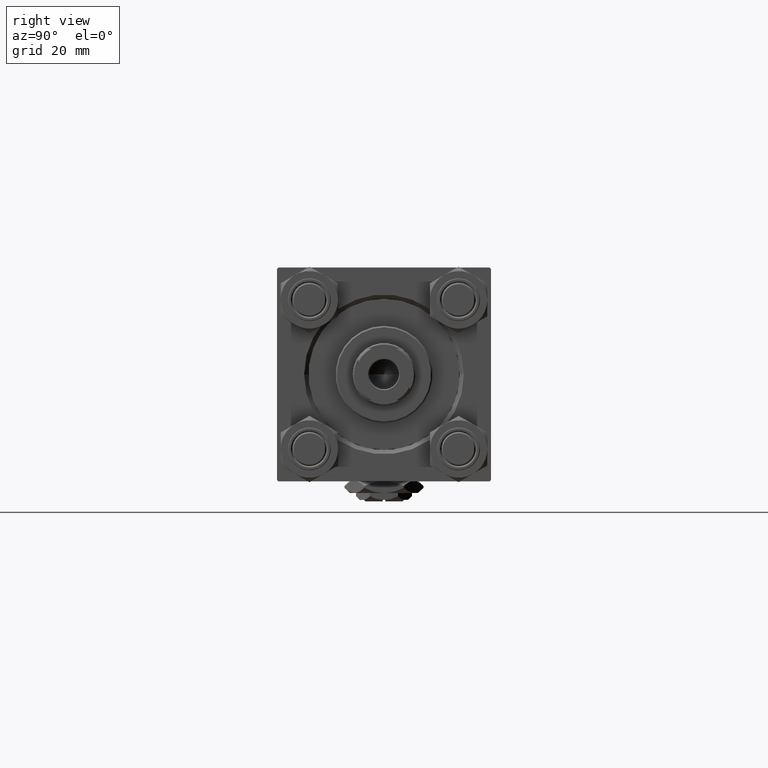
[diagram: clean part render]
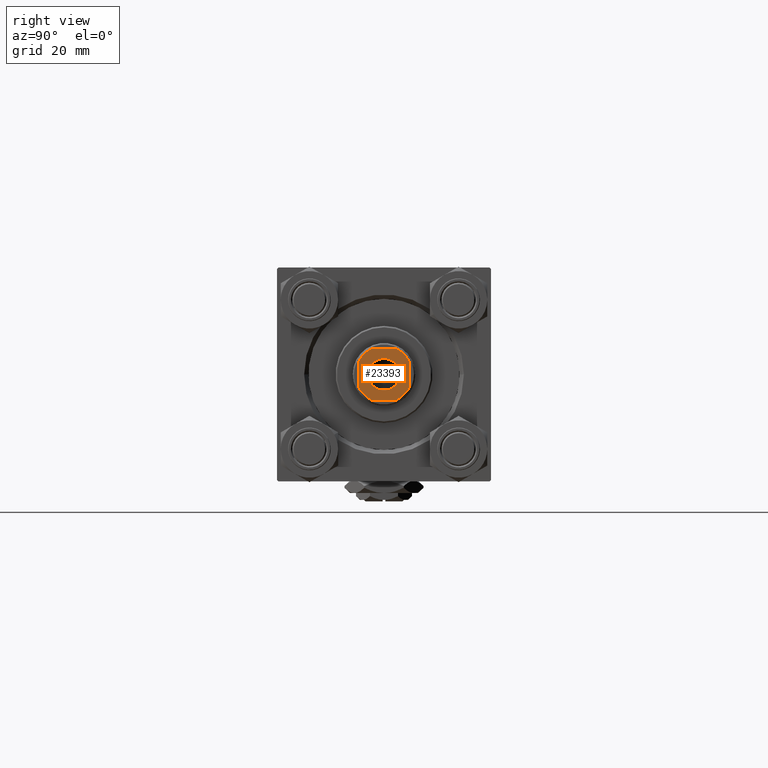
[diagram: same view with one face highlighted and labeled with its STEP entity id]
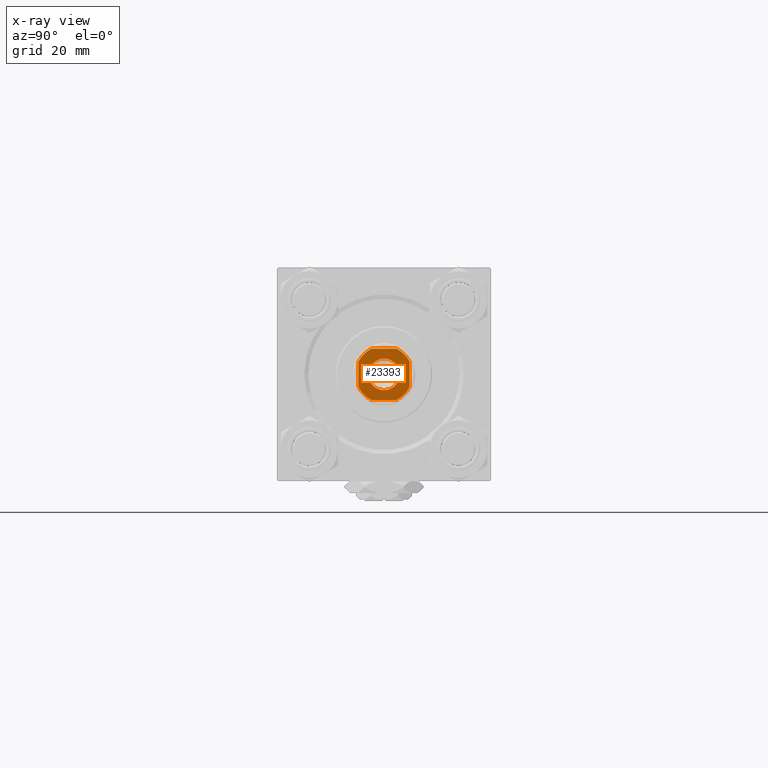
[diagram: x-ray of the same camera — body ghosted, the highlighted face saturated]
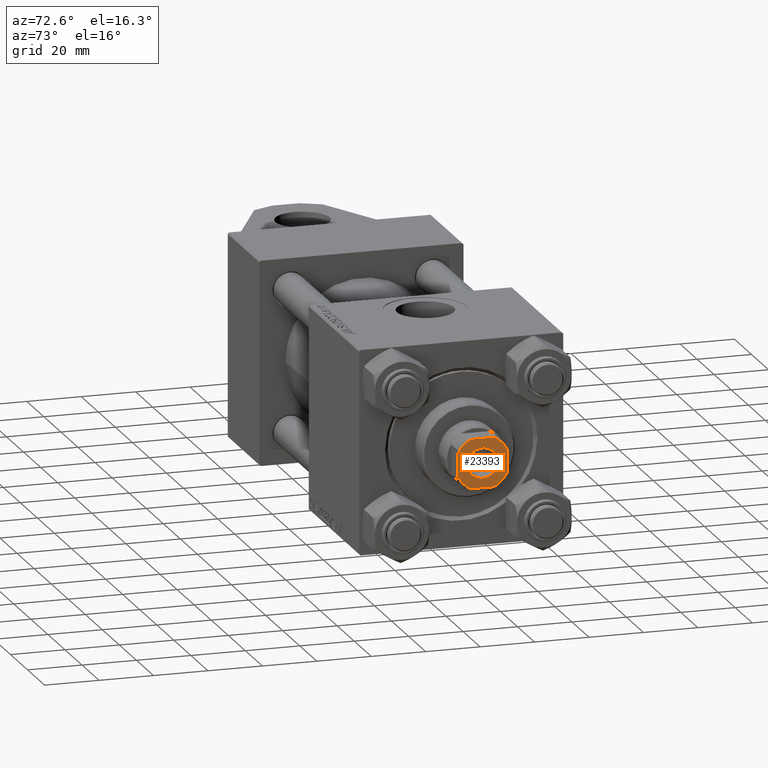
[diagram: same view with one face highlighted and labeled with its STEP entity id]
A machine part, right view. The second image highlights one B-rep face of the part: STEP entity #23393.
The next image is the same camera in x-ray: the body ghosted, the highlighted face saturated — about 0% of this face is hidden behind the body in this view.
A second angle (auxiliary view) of the same face is appended — the face is thin or edge-on in the first view.
In plain terms, the highlighted planar face has unit normal (1, 0, 0).
Its self-contained STEP definition (entity closure, byte-faithful):
#1154 = AXIS2_PLACEMENT_3D ( 'NONE', #40652, #5055, #20908 ) ;
#1589 = DIRECTION ( 'NONE',  ( 0.000000000000000000, -0.000000000000000000, -1.000000000000000000 ) ) ;
#2275 = DIRECTION ( 'NONE',  ( 1.000000000000000000, 0.000000000000000000, 0.000000000000000000 ) ) ;
#2848 = CIRCLE ( 'NONE', #1154, 9.999999999999973355 ) ;
#3911 = LINE ( 'NONE', #11725, #19060 ) ;
#4367 = CARTESIAN_POINT ( 'NONE',  ( 8.999999999999996447, 8.999999999999998224, 142.0000000000000284 ) ) ;
#4454 = DIRECTION ( 'NONE',  ( 1.000000000000000000, 0.000000000000000000, 0.000000000000000000 ) ) ;
#5055 = DIRECTION ( 'NONE',  ( -0.000000000000000000, 0.000000000000000000, 1.000000000000000000 ) ) ;
#5192 = DIRECTION ( 'NONE',  ( -0.000000000000000000, 0.000000000000000000, 1.000000000000000000 ) ) ;
#5290 = DIRECTION ( 'NONE',  ( 1.000000000000000000, 0.000000000000000000, 0.000000000000000000 ) ) ;
#5730 = EDGE_CURVE ( 'NONE', #34225, #10339, #21171, .T. ) ;
#6244 = CARTESIAN_POINT ( 'NONE',  ( -9.000000000000003553, 4.358898943540833848, 142.0000000000000284 ) ) ;
#7508 = CARTESIAN_POINT ( 'NONE',  ( 0.000000000000000000, 0.000000000000000000, 142.0000000000000284 ) ) ;
#7601 = EDGE_CURVE ( 'NONE', #28241, #49169, #2848, .T. ) ;
#8020 = DIRECTION ( 'NONE',  ( -1.927470528863119049E-16, 1.000000000000000000, -0.000000000000000000 ) ) ;
#8441 = AXIS2_PLACEMENT_3D ( 'NONE', #7508, #39703, #39202 ) ;
#8484 = VERTEX_POINT ( 'NONE', #8506 ) ;
#8506 = CARTESIAN_POINT ( 'NONE',  ( 8.999999999999998224, -4.358898943540842730, 142.0000000000000284 ) ) ;
#9902 = AXIS2_PLACEMENT_3D ( 'NONE', #16109, #5192, #24688 ) ;
#10339 = VERTEX_POINT ( 'NONE', #6244 ) ;
#11163 = CARTESIAN_POINT ( 'NONE',  ( -4.358898943540612692, -9.000000000000001776, 142.0000000000000284 ) ) ;
#11725 = CARTESIAN_POINT ( 'NONE',  ( -9.000000000000003553, 8.999999999999998224, 142.0000000000000284 ) ) ;
#11992 = EDGE_CURVE ( 'NONE', #49169, #43739, #21201, .T. ) ;
#13362 = CARTESIAN_POINT ( 'NONE',  ( 0.000000000000000000, 0.000000000000000000, 142.0000000000000284 ) ) ;
#14076 = DIRECTION ( 'NONE',  ( 1.000000000000000000, 0.000000000000000000, 0.000000000000000000 ) ) ;
#14305 = VERTEX_POINT ( 'NONE', #20483 ) ;
#14852 = ORIENTED_EDGE ( 'NONE', *, *, #22627, .T. ) ;
#14938 = ORIENTED_EDGE ( 'NONE', *, *, #44537, .T. ) ;
#15322 = ORIENTED_EDGE ( 'NONE', *, *, #29563, .T. ) ;
#15857 = VERTEX_POINT ( 'NONE', #36747 ) ;
#16109 = CARTESIAN_POINT ( 'NONE',  ( 0.000000000000000000, 0.000000000000000000, 142.0000000000000284 ) ) ;
#16594 = LINE ( 'NONE', #4367, #19004 ) ;
#17632 = EDGE_CURVE ( 'NONE', #35760, #15857, #41349, .T. ) ;
#17954 = VERTEX_POINT ( 'NONE', #23825 ) ;
#18598 = ORIENTED_EDGE ( 'NONE', *, *, #5730, .T. ) ;
#19004 = VECTOR ( 'NONE', #8020, 1000.000000000000000 ) ;
#19060 = VECTOR ( 'NONE', #19768, 1000.000000000000000 ) ;
#19768 = DIRECTION ( 'NONE',  ( 9.637352644315595243E-17, -1.000000000000000000, 0.000000000000000000 ) ) ;
#19791 = AXIS2_PLACEMENT_3D ( 'NONE', #26206, #42035, #2275 ) ;
#20270 = FACE_BOUND ( 'NONE', #24626, .T. ) ;
#20483 = CARTESIAN_POINT ( 'NONE',  ( 4.358898943540733484, 8.999999999999998224, 142.0000000000000284 ) ) ;
#20908 = DIRECTION ( 'NONE',  ( 1.000000000000000000, 0.000000000000000000, 0.000000000000000000 ) ) ;
#20971 = EDGE_CURVE ( 'NONE', #10339, #28241, #3911, .T. ) ;
#21171 = CIRCLE ( 'NONE', #26984, 10.00000000000007105 ) ;
#21201 = LINE ( 'NONE', #47964, #41125 ) ;
#22592 = DIRECTION ( 'NONE',  ( -1.000000000000000000, -0.000000000000000000, -0.000000000000000000 ) ) ;
#22603 = ORIENTED_EDGE ( 'NONE', *, *, #26037, .T. ) ;
#22627 = EDGE_CURVE ( 'NONE', #14305, #34225, #34802, .T. ) ;
#22968 = ORIENTED_EDGE ( 'NONE', *, *, #20971, .T. ) ;
#23016 = CARTESIAN_POINT ( 'NONE',  ( -9.000000000000003553, -4.358898943540610915, 142.0000000000000284 ) ) ;
#23393 = ADVANCED_FACE ( 'NONE', ( #20270, #24952 ), #35870, .T. ) ;
#23825 = CARTESIAN_POINT ( 'NONE',  ( 8.999999999999998224, 4.358898943540736148, 142.0000000000000284 ) ) ;
#24591 = DIRECTION ( 'NONE',  ( 1.000000000000000000, 0.000000000000000000, 0.000000000000000000 ) ) ;
#24626 = EDGE_LOOP ( 'NONE', ( #39868, #15322 ) ) ;
#24688 = DIRECTION ( 'NONE',  ( 1.000000000000000000, 0.000000000000000000, 0.000000000000000000 ) ) ;
#24952 = FACE_OUTER_BOUND ( 'NONE', #38624, .T. ) ;
#26037 = EDGE_CURVE ( 'NONE', #17954, #14305, #44133, .T. ) ;
#26206 = CARTESIAN_POINT ( 'NONE',  ( 0.000000000000000000, 0.000000000000000000, 142.0000000000000284 ) ) ;
#26984 = AXIS2_PLACEMENT_3D ( 'NONE', #32016, #40056, #4454 ) ;
#28241 = VERTEX_POINT ( 'NONE', #23016 ) ;
#29458 = CARTESIAN_POINT ( 'NONE',  ( -4.358898943540841842, 8.999999999999998224, 142.0000000000000284 ) ) ;
#29563 = EDGE_CURVE ( 'NONE', #15857, #35760, #46302, .T. ) ;
#30608 = VECTOR ( 'NONE', #22592, 1000.000000000000000 ) ;
#31652 = EDGE_CURVE ( 'NONE', #8484, #17954, #16594, .T. ) ;
#32016 = CARTESIAN_POINT ( 'NONE',  ( 0.000000000000000000, 0.000000000000000000, 142.0000000000000284 ) ) ;
#33040 = AXIS2_PLACEMENT_3D ( 'NONE', #37458, #1589, #14076 ) ;
#33375 = DIRECTION ( 'NONE',  ( -0.000000000000000000, 0.000000000000000000, 1.000000000000000000 ) ) ;
#33870 = CARTESIAN_POINT ( 'NONE',  ( 4.358898943540838289, -9.000000000000001776, 142.0000000000000284 ) ) ;
#34225 = VERTEX_POINT ( 'NONE', #29458 ) ;
#34802 = LINE ( 'NONE', #38179, #30608 ) ;
#34803 = ORIENTED_EDGE ( 'NONE', *, *, #11992, .T. ) ;
#35583 = CARTESIAN_POINT ( 'NONE',  ( 5.549999999999998934, 0.000000000000000000, 142.0000000000000284 ) ) ;
#35760 = VERTEX_POINT ( 'NONE', #35583 ) ;
#35867 = AXIS2_PLACEMENT_3D ( 'NONE', #13362, #33375, #5290 ) ;
#35870 = PLANE ( 'NONE',  #9902 ) ;
#36747 = CARTESIAN_POINT ( 'NONE',  ( -5.549999999999998934, 6.796789735267809794E-16, 142.0000000000000284 ) ) ;
#37458 = CARTESIAN_POINT ( 'NONE',  ( 0.000000000000000000, 0.000000000000000000, 142.0000000000000284 ) ) ;
#38179 = CARTESIAN_POINT ( 'NONE',  ( -9.000000000000003553, 8.999999999999998224, 142.0000000000000284 ) ) ;
#38624 = EDGE_LOOP ( 'NONE', ( #46392, #22603, #14852, #18598, #22968, #45044, #34803, #14938 ) ) ;
#39202 = DIRECTION ( 'NONE',  ( 1.000000000000000000, 0.000000000000000000, 0.000000000000000000 ) ) ;
#39703 = DIRECTION ( 'NONE',  ( -0.000000000000000000, 0.000000000000000000, 1.000000000000000000 ) ) ;
#39868 = ORIENTED_EDGE ( 'NONE', *, *, #17632, .T. ) ;
#40009 = CIRCLE ( 'NONE', #35867, 10.00000000000007283 ) ;
#40056 = DIRECTION ( 'NONE',  ( -0.000000000000000000, 0.000000000000000000, 1.000000000000000000 ) ) ;
#40652 = CARTESIAN_POINT ( 'NONE',  ( 0.000000000000000000, 0.000000000000000000, 142.0000000000000284 ) ) ;
#41125 = VECTOR ( 'NONE', #24591, 1000.000000000000000 ) ;
#41349 = CIRCLE ( 'NONE', #19791, 5.549999999999998934 ) ;
#42035 = DIRECTION ( 'NONE',  ( 0.000000000000000000, -0.000000000000000000, -1.000000000000000000 ) ) ;
#43739 = VERTEX_POINT ( 'NONE', #33870 ) ;
#44133 = CIRCLE ( 'NONE', #8441, 10.00000000000002487 ) ;
#44537 = EDGE_CURVE ( 'NONE', #43739, #8484, #40009, .T. ) ;
#45044 = ORIENTED_EDGE ( 'NONE', *, *, #7601, .T. ) ;
#46302 = CIRCLE ( 'NONE', #33040, 5.549999999999998934 ) ;
#46392 = ORIENTED_EDGE ( 'NONE', *, *, #31652, .T. ) ;
#47964 = CARTESIAN_POINT ( 'NONE',  ( -9.000000000000001776, -9.000000000000001776, 142.0000000000000284 ) ) ;
#49169 = VERTEX_POINT ( 'NONE', #11163 ) ;